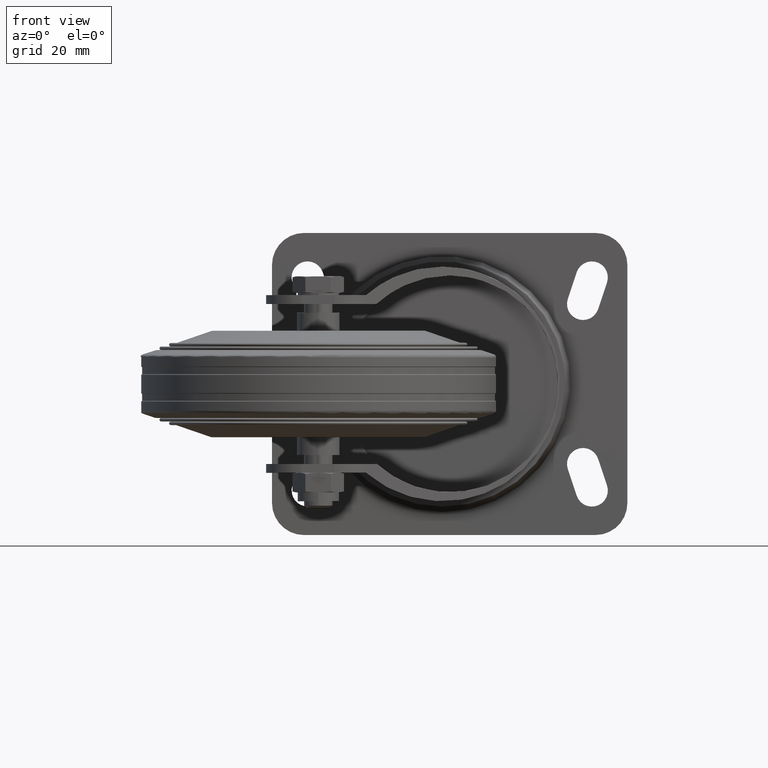
[diagram: clean part render]
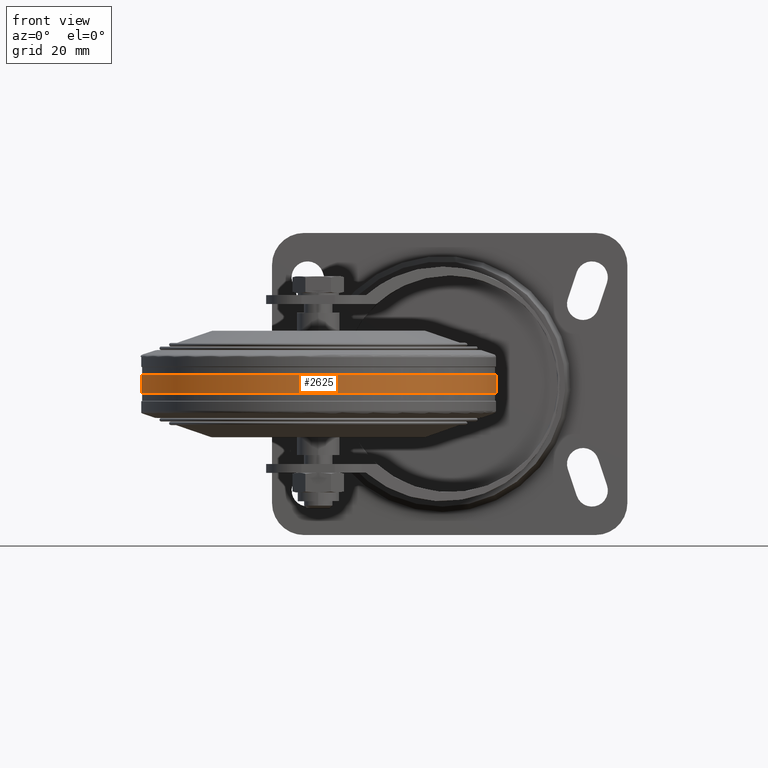
[diagram: same view with one face highlighted and labeled with its STEP entity id]
A machine part, front view. The second image highlights one B-rep face of the part: STEP entity #2625.
In plain terms, the highlighted cylindrical surface (bore or boss wall) has radius 50 mm, axis along (0, 0, -1).
Its self-contained STEP definition (entity closure, byte-faithful):
#340=LINE('',#4802,#467);
#467=VECTOR('',#3896,50.);
#506=CYLINDRICAL_SURFACE('',#3078,50.);
#666=FACE_OUTER_BOUND('',#870,.T.);
#870=EDGE_LOOP('',(#2389,#2390,#2391,#2392));
#1050=CIRCLE('',#3077,50.);
#1051=CIRCLE('',#3079,50.);
#1328=VERTEX_POINT('',#4797);
#1329=VERTEX_POINT('',#4801);
#1683=EDGE_CURVE('',#1328,#1328,#1050,.T.);
#1684=EDGE_CURVE('',#1328,#1329,#340,.T.);
#1685=EDGE_CURVE('',#1329,#1329,#1051,.T.);
#2389=ORIENTED_EDGE('',*,*,#1683,.F.);
#2390=ORIENTED_EDGE('',*,*,#1684,.T.);
#2391=ORIENTED_EDGE('',*,*,#1685,.T.);
#2392=ORIENTED_EDGE('',*,*,#1684,.F.);
#2625=ADVANCED_FACE('',(#666),#506,.T.);
#3077=AXIS2_PLACEMENT_3D('',#4799,#3892,#3893);
#3078=AXIS2_PLACEMENT_3D('',#4800,#3894,#3895);
#3079=AXIS2_PLACEMENT_3D('',#4803,#3897,#3898);
#3892=DIRECTION('center_axis',(6.12323399573677E-17,0.,-1.));
#3893=DIRECTION('ref_axis',(-1.,0.,-6.12323399573677E-17));
#3894=DIRECTION('center_axis',(6.12323399573677E-17,0.,-1.));
#3895=DIRECTION('ref_axis',(-1.,0.,-6.12323399573677E-17));
#3896=DIRECTION('',(-6.12323399573677E-17,0.,1.));
#3897=DIRECTION('center_axis',(6.12323399573677E-17,0.,-1.));
#3898=DIRECTION('ref_axis',(-1.,0.,-6.12323399573677E-17));
#4797=CARTESIAN_POINT('',(50.,-6.12323399573677E-15,-2.5));
#4799=CARTESIAN_POINT('Origin',(1.53080849893419E-16,0.,-2.5));
#4800=CARTESIAN_POINT('Origin',(9.18485099360515E-16,0.,-15.));
#4801=CARTESIAN_POINT('',(50.,-6.12323399573677E-15,2.5));
#4802=CARTESIAN_POINT('',(50.,-6.12323399573677E-15,-15.));
#4803=CARTESIAN_POINT('Origin',(-1.53080849893419E-16,0.,2.5));